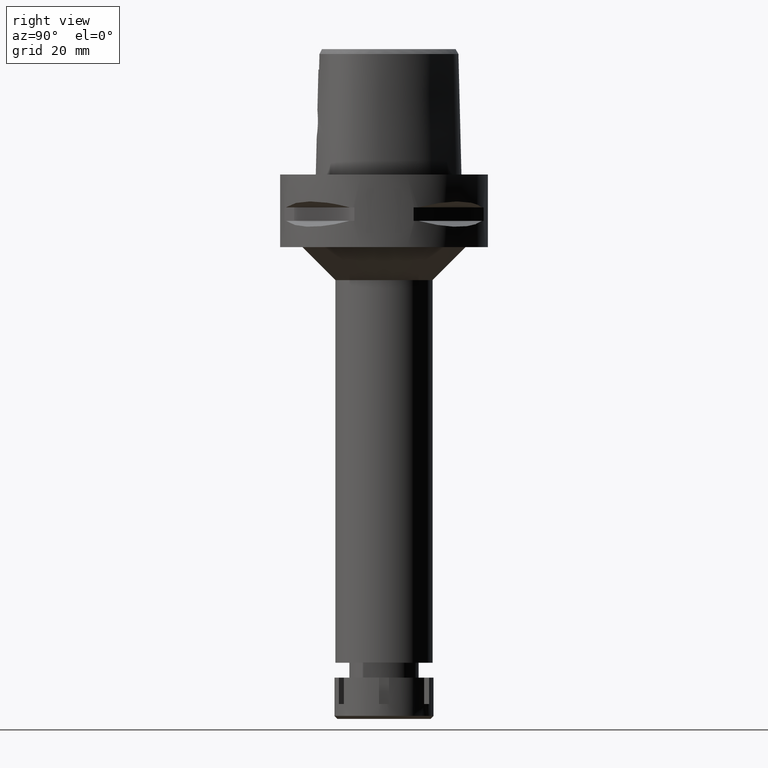
[diagram: clean part render]
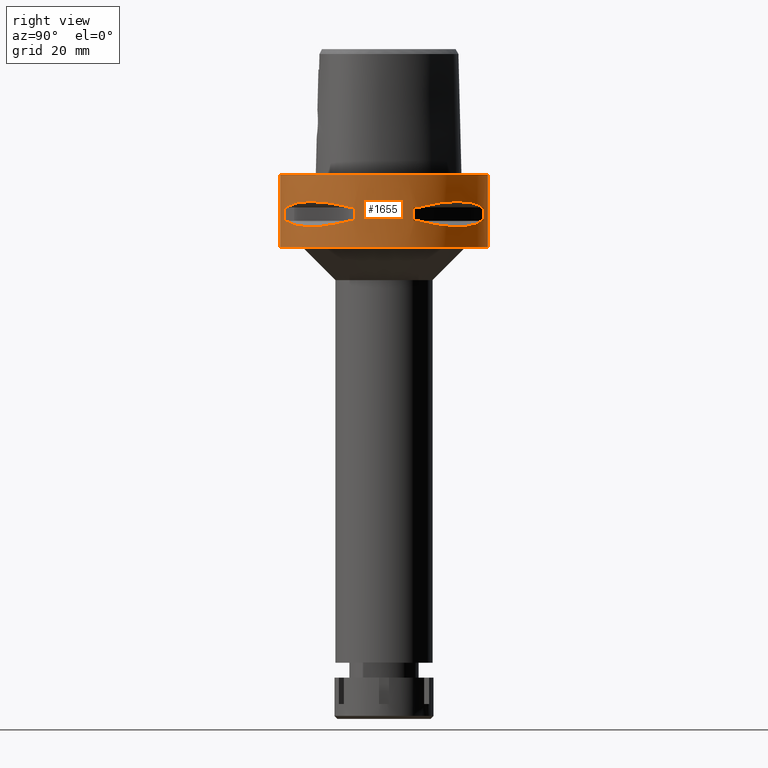
[diagram: same view with one face highlighted and labeled with its STEP entity id]
A machine part, right view. The second image highlights one B-rep face of the part: STEP entity #1655.
In plain terms, the highlighted cylindrical surface (partial cylindrical patch) has radius 31.5 mm, axis along (0, 0, -1).
Its self-contained STEP definition (entity closure, byte-faithful):
#49 = EDGE_CURVE ( 'NONE', #1065, #1573, #5286, .T. ) ;
#55 = CARTESIAN_POINT ( 'NONE',  ( 12.70097436192362572, 28.92472615202282782, -9.353533115182569802 ) ) ;
#80 = EDGE_CURVE ( 'NONE', #1065, #2919, #2968, .T. ) ;
#138 = DIRECTION ( 'NONE',  ( 0.0000000000000000000, -1.000000000000000000, 0.0000000000000000000 ) ) ;
#160 = DIRECTION ( 'NONE',  ( 0.9433937698468619626, -0.3316748332540863653, 0.0000000000000000000 ) ) ;
#173 = CARTESIAN_POINT ( 'NONE',  ( 0.0000000000000000000, 1.321393896280000074E-14, -22.00000000000000000 ) ) ;
#230 = VERTEX_POINT ( 'NONE', #1174 ) ;
#263 = EDGE_CURVE ( 'NONE', #2667, #750, #4801, .T. ) ;
#302 = CARTESIAN_POINT ( 'NONE',  ( 17.05047092244498685, 26.48642424310287780, -15.42670883407686411 ) ) ;
#349 = AXIS2_PLACEMENT_3D ( 'NONE', #173, #2723, #138 ) ;
#354 = CARTESIAN_POINT ( 'NONE',  ( 27.88210502977326755, -14.84430321591228186, -8.906184731931713117 ) ) ;
#360 = CARTESIAN_POINT ( 'NONE',  ( 14.89252659058207939, 27.86285265926221300, -15.10765629752054195 ) ) ;
#409 = CARTESIAN_POINT ( 'NONE',  ( 29.71690375017999841, -10.44775724750000023, -9.949999999998999201 ) ) ;
#433 = EDGE_CURVE ( 'NONE', #5354, #1455, #624, .T. ) ;
#435 = DIRECTION ( 'NONE',  ( 0.0000000000000000000, 0.0000000000000000000, 1.000000000000000000 ) ) ;
#438 = CIRCLE ( 'NONE', #4219, 31.50000000000000711 ) ;
#488 = CARTESIAN_POINT ( 'NONE',  ( 28.92474506847813132, 12.70092055722002300, -9.353547358250265731 ) ) ;
#507 = CARTESIAN_POINT ( 'NONE',  ( 8.981198972017999438, 30.19251670572000279, -14.05000000000000071 ) ) ;
#513 = ORIENTED_EDGE ( 'NONE', *, *, #4059, .F. ) ;
#518 = DIRECTION ( 'NONE',  ( 0.9433937698468619626, 0.3316748332540863653, 0.0000000000000000000 ) ) ;
#523 = ORIENTED_EDGE ( 'NONE', *, *, #2275, .T. ) ;
#571 = CARTESIAN_POINT ( 'NONE',  ( 8.981198972017999438, -30.19251670572000279, -9.950000000000001066 ) ) ;
#586 = FACE_OUTER_BOUND ( 'NONE', #858, .T. ) ;
#595 = CARTESIAN_POINT ( 'NONE',  ( 0.0000000000000000000, 31.50000000000000000, -22.00000000000000000 ) ) ;
#624 = CIRCLE ( 'NONE', #4487, 31.50000000000000711 ) ;
#638 = LINE ( 'NONE', #571, #891 ) ;
#710 = DIRECTION ( 'NONE',  ( 0.0000000000000000000, 0.0000000000000000000, 1.000000000000000000 ) ) ;
#726 = CARTESIAN_POINT ( 'NONE',  ( 29.71690375017999841, -10.44775724750000023, -14.05000000000000071 ) ) ;
#734 = CARTESIAN_POINT ( 'NONE',  ( 26.84474411198702981, 16.48208282229089505, -15.34094883778014129 ) ) ;
#750 = VERTEX_POINT ( 'NONE', #2622 ) ;
#789 = CARTESIAN_POINT ( 'NONE',  ( 17.76952662673489769, 26.01217882833579154, -15.52665221626253356 ) ) ;
#811 = AXIS2_PLACEMENT_3D ( 'NONE', #921, #1795, #518 ) ;
#812 = CARTESIAN_POINT ( 'NONE',  ( 26.42800887047654967, -17.14106442934675911, -15.43984550238513620 ) ) ;
#815 = CARTESIAN_POINT ( 'NONE',  ( 29.71690375017999841, -10.44775724750000023, -9.949999999998999201 ) ) ;
#858 = EDGE_LOOP ( 'NONE', ( #1161, #523, #2127, #4340 ) ) ;
#891 = VECTOR ( 'NONE', #3973, 1000.000000000000000 ) ;
#917 = ORIENTED_EDGE ( 'NONE', *, *, #4333, .T. ) ;
#921 = CARTESIAN_POINT ( 'NONE',  ( 0.0000000000000000000, 1.321393896280000074E-14, -14.05000000000000071 ) ) ;
#929 = CARTESIAN_POINT ( 'NONE',  ( 0.0000000000000000000, 1.321393896280000074E-14, -9.950000000000001066 ) ) ;
#942 = CARTESIAN_POINT ( 'NONE',  ( 27.88214534477233286, 14.84422749186507140, -8.906206096533264116 ) ) ;
#1018 = DIRECTION ( 'NONE',  ( 0.0000000000000000000, 0.0000000000000000000, 1.000000000000000000 ) ) ;
#1032 = DIRECTION ( 'NONE',  ( 0.0000000000000000000, 0.0000000000000000000, -1.000000000000000000 ) ) ;
#1039 = AXIS2_PLACEMENT_3D ( 'NONE', #4422, #1018, #5347 ) ;
#1065 = VERTEX_POINT ( 'NONE', #5259 ) ;
#1072 = VECTOR ( 'NONE', #2233, 1000.000000000000000 ) ;
#1079 = B_SPLINE_CURVE_WITH_KNOTS ( 'NONE', 3,
 ( #4349, #488, #942, #3476, #2191, #3892, #5191, #2216, #55, #3506 ),
 .UNSPECIFIED., .F., .F.,
 ( 4, 2, 2, 2, 4 ),
 ( 0.0000000000000000000, 0.2500000000000000000, 0.5000000000000000000, 0.7500000000000000000, 1.000000000000000000 ),
 .UNSPECIFIED. ) ;
#1156 = CARTESIAN_POINT ( 'NONE',  ( 10.44775724750000023, 29.71690375017999841, -14.05000000000000071 ) ) ;
#1161 = ORIENTED_EDGE ( 'NONE', *, *, #49, .T. ) ;
#1174 = CARTESIAN_POINT ( 'NONE',  ( 30.19251670572000279, -8.981198972019999616, -14.05000000000000071 ) ) ;
#1181 = VERTEX_POINT ( 'NONE', #5332 ) ;
#1199 = CARTESIAN_POINT ( 'NONE',  ( 0.0000000000000000000, 1.321393896280000074E-14, -9.950000000000001066 ) ) ;
#1206 = CARTESIAN_POINT ( 'NONE',  ( 18.86897208074864096, -25.32725744465734152, -15.69588095933306704 ) ) ;
#1230 = CARTESIAN_POINT ( 'NONE',  ( 24.23018836746479110, -20.18579225685548195, -15.78559396979238194 ) ) ;
#1237 = CARTESIAN_POINT ( 'NONE',  ( 29.71690375017999841, 10.44775724750000023, -14.05000000000000071 ) ) ;
#1251 = CARTESIAN_POINT ( 'NONE',  ( 0.0000000000000000000, 1.321393896280000074E-14, 2.131628207279999844E-14 ) ) ;
#1266 = CARTESIAN_POINT ( 'NONE',  ( 25.32725744468687168, 18.86897208071480136, -15.69588095933130845 ) ) ;
#1281 = VERTEX_POINT ( 'NONE', #3839 ) ;
#1289 = VERTEX_POINT ( 'NONE', #815 ) ;
#1303 = DIRECTION ( 'NONE',  ( 0.9584925938322735872, -0.2851174276831918153, 0.0000000000000000000 ) ) ;
#1305 = CARTESIAN_POINT ( 'NONE',  ( 0.0000000000000000000, -31.50000000000000000, 2.131628207279999844E-14 ) ) ;
#1309 = ORIENTED_EDGE ( 'NONE', *, *, #5020, .T. ) ;
#1318 = AXIS2_PLACEMENT_3D ( 'NONE', #1199, #3361, #4626 ) ;
#1361 = VERTEX_POINT ( 'NONE', #2108 ) ;
#1409 = VERTEX_POINT ( 'NONE', #5028 ) ;
#1411 = DIRECTION ( 'NONE',  ( 0.0000000000000000000, 0.0000000000000000000, 1.000000000000000000 ) ) ;
#1415 = VECTOR ( 'NONE', #435, 1000.000000000000000 ) ;
#1441 = DIRECTION ( 'NONE',  ( 0.0000000000000000000, -1.000000000000000000, 0.0000000000000000000 ) ) ;
#1455 = VERTEX_POINT ( 'NONE', #3156 ) ;
#1479 = DIRECTION ( 'NONE',  ( 0.0000000000000000000, 0.0000000000000000000, -1.000000000000000000 ) ) ;
#1503 = CIRCLE ( 'NONE', #1039, 31.50000000000001776 ) ;
#1522 = VERTEX_POINT ( 'NONE', #4924 ) ;
#1573 = VERTEX_POINT ( 'NONE', #1305 ) ;
#1599 = CARTESIAN_POINT ( 'NONE',  ( 20.65093790434436372, -23.89673728056386182, -15.83935804901581079 ) ) ;
#1605 = ORIENTED_EDGE ( 'NONE', *, *, #4351, .F. ) ;
#1631 = CARTESIAN_POINT ( 'NONE',  ( 26.29071741523927841, -17.35163608579630079, -15.46976201925489569 ) ) ;
#1655 = ADVANCED_FACE ( 'NONE', ( #586, #4086, #4831 ), #2707, .T. ) ;
#1660 = CARTESIAN_POINT ( 'NONE',  ( 25.43927894892507169, -18.59229662064666755, -15.62866126334561123 ) ) ;
#1666 = CARTESIAN_POINT ( 'NONE',  ( 27.11872488589154528, 16.03138450078616728, -15.26880420107737990 ) ) ;
#1690 = B_SPLINE_CURVE_WITH_KNOTS ( 'NONE', 3,
 ( #2086, #2977, #3426, #3865, #5055, #3448, #3790, #354, #2162, #409 ),
 .UNSPECIFIED., .F., .F.,
 ( 4, 2, 2, 2, 4 ),
 ( 0.0000000000000000000, 0.2500000000000001110, 0.5000000000000000000, 0.7500000000000000000, 1.000000000000000000 ),
 .UNSPECIFIED. ) ;
#1795 = DIRECTION ( 'NONE',  ( 0.0000000000000000000, 0.0000000000000000000, -1.000000000000000000 ) ) ;
#1807 = VERTEX_POINT ( 'NONE', #2437 ) ;
#1995 = CARTESIAN_POINT ( 'NONE',  ( 27.86285265927817889, -14.89252659053665795, -15.10765629750851602 ) ) ;
#1996 = ORIENTED_EDGE ( 'NONE', *, *, #3011, .T. ) ;
#2003 = CARTESIAN_POINT ( 'NONE',  ( 17.14106442935163699, 26.42800887047211944, -15.43984550238531916 ) ) ;
#2022 = CARTESIAN_POINT ( 'NONE',  ( 28.91382665370159089, -12.73197616784618269, -14.65467361752943098 ) ) ;
#2059 = CARTESIAN_POINT ( 'NONE',  ( 23.89673728051777957, 20.65093790438612587, -15.83935804901405042 ) ) ;
#2079 = ORIENTED_EDGE ( 'NONE', *, *, #2648, .T. ) ;
#2086 = CARTESIAN_POINT ( 'NONE',  ( 10.44775724750000023, -29.71690375017999841, -9.949999999998999201 ) ) ;
#2088 = CARTESIAN_POINT ( 'NONE',  ( 29.31542262584548553, 11.58970337494890224, -14.35229357167063213 ) ) ;
#2106 = CARTESIAN_POINT ( 'NONE',  ( 16.86571563436751475, -26.60451452154716989, -15.39949295786035854 ) ) ;
#2108 = CARTESIAN_POINT ( 'NONE',  ( 10.44775724750000023, -29.71690375017999841, -14.05000000000000071 ) ) ;
#2112 = CARTESIAN_POINT ( 'NONE',  ( 26.58330558444425762, 16.89910283486581832, -15.40446471307235754 ) ) ;
#2127 = ORIENTED_EDGE ( 'NONE', *, *, #2265, .T. ) ;
#2162 = CARTESIAN_POINT ( 'NONE',  ( 28.92472615202282427, -12.70097436192359375, -9.353533115182569802 ) ) ;
#2191 = CARTESIAN_POINT ( 'NONE',  ( 23.90617837140502999, 20.64154884334748985, -8.160627831333236770 ) ) ;
#2214 = ORIENTED_EDGE ( 'NONE', *, *, #263, .F. ) ;
#2216 = CARTESIAN_POINT ( 'NONE',  ( 14.84430321591224278, 27.88210502977331373, -8.906184731931713117 ) ) ;
#2233 = DIRECTION ( 'NONE',  ( 0.0000000000000000000, 0.0000000000000000000, 1.000000000000000000 ) ) ;
#2265 = EDGE_CURVE ( 'NONE', #4154, #2919, #3931, .T. ) ;
#2275 = EDGE_CURVE ( 'NONE', #1573, #4154, #4878, .T. ) ;
#2286 = CARTESIAN_POINT ( 'NONE',  ( 0.0000000000000000000, 1.321393896280000074E-14, 7.900000000000000355 ) ) ;
#2311 = EDGE_CURVE ( 'NONE', #1522, #750, #3238, .T. ) ;
#2349 = B_SPLINE_CURVE_WITH_KNOTS ( 'NONE', 3,
 ( #5052, #4994, #5498, #2500, #5442, #4212, #4657, #3343, #2106, #2474, #1206, #1599, #4577, #1230, #1660, #3314, #1631, #812, #3286, #5077, #2901, #1995, #2022, #726 ),
 .UNSPECIFIED., .F., .F.,
 ( 4, 1, 1, 1, 1, 1, 2, 2, 2, 1, 1, 1, 1, 1, 2, 2, 4 ),
 ( 0.0000000000000000000, 0.1250000000000063005, 0.1875000000000094369, 0.2187500000000109357, 0.2343750000000116851, 0.2421875000000119627, 0.2460937500000119627, 0.2500000000000119349, 0.5000000000000025535, 0.6249999999999978906, 0.6874999999999955591, 0.7187499999999945599, 0.7343749999999941158, 0.7421874999999936717, 0.7460937499999935607, 0.7499999999999933387, 1.000000000000000000 ),
 .UNSPECIFIED. ) ;
#2437 = CARTESIAN_POINT ( 'NONE',  ( 8.981198972017999438, -30.19251670572000279, -14.05000000000000071 ) ) ;
#2474 = CARTESIAN_POINT ( 'NONE',  ( 16.89910283486529252, -26.58330558444471947, -15.40446471307232912 ) ) ;
#2491 = AXIS2_PLACEMENT_3D ( 'NONE', #4455, #1479, #3137 ) ;
#2500 = CARTESIAN_POINT ( 'NONE',  ( 15.11986997312254033, -27.64634172017490954, -15.11207862404184787 ) ) ;
#2508 = CARTESIAN_POINT ( 'NONE',  ( 16.98999780422198569, 26.52527364208497573, -15.41788098766329540 ) ) ;
#2526 = DIRECTION ( 'NONE',  ( 0.0000000000000000000, 0.0000000000000000000, -1.000000000000000000 ) ) ;
#2604 = ORIENTED_EDGE ( 'NONE', *, *, #4638, .T. ) ;
#2622 = CARTESIAN_POINT ( 'NONE',  ( 30.19251670572000279, 8.981198972017999438, -14.05000000000000071 ) ) ;
#2648 = EDGE_CURVE ( 'NONE', #1409, #1289, #1690, .T. ) ;
#2659 = CARTESIAN_POINT ( 'NONE',  ( 0.0000000000000000000, 1.321393896280000074E-14, -14.05000000000000071 ) ) ;
#2667 = VERTEX_POINT ( 'NONE', #5109 ) ;
#2679 = CARTESIAN_POINT ( 'NONE',  ( 30.19251670572000279, 8.981198972017999438, -9.950000000000001066 ) ) ;
#2707 = CYLINDRICAL_SURFACE ( 'NONE', #5111, 31.50000000000000000 ) ;
#2723 = DIRECTION ( 'NONE',  ( 0.0000000000000000000, 0.0000000000000000000, 1.000000000000000000 ) ) ;
#2737 = DIRECTION ( 'NONE',  ( 0.3316748332540863653, -0.9433937698468619626, 0.0000000000000000000 ) ) ;
#2742 = EDGE_CURVE ( 'NONE', #230, #1181, #4661, .T. ) ;
#2755 = VERTEX_POINT ( 'NONE', #4319 ) ;
#2787 = CARTESIAN_POINT ( 'NONE',  ( 10.44775724750000023, 29.71690375017999841, -9.949999999998999201 ) ) ;
#2792 = VECTOR ( 'NONE', #2526, 1000.000000000000000 ) ;
#2805 = VERTEX_POINT ( 'NONE', #3499 ) ;
#2846 = ORIENTED_EDGE ( 'NONE', *, *, #3966, .F. ) ;
#2899 = ORIENTED_EDGE ( 'NONE', *, *, #2311, .T. ) ;
#2901 = CARTESIAN_POINT ( 'NONE',  ( 26.54368690921627305, -16.96123479564985459, -15.41365572341332602 ) ) ;
#2919 = VERTEX_POINT ( 'NONE', #595 ) ;
#2968 = LINE ( 'NONE', #3362, #2792 ) ;
#2977 = CARTESIAN_POINT ( 'NONE',  ( 12.70092055722010116, -28.92474506847808868, -9.353547358250267507 ) ) ;
#3011 = EDGE_CURVE ( 'NONE', #3198, #5354, #1079, .T. ) ;
#3137 = DIRECTION ( 'NONE',  ( 0.2851174276831918153, 0.9584925938322735872, 0.0000000000000000000 ) ) ;
#3156 = CARTESIAN_POINT ( 'NONE',  ( 8.981198972017999438, 30.19251670572000279, -9.950000000000001066 ) ) ;
#3161 = DIRECTION ( 'NONE',  ( 0.0000000000000000000, 0.0000000000000000000, -1.000000000000000000 ) ) ;
#3198 = VERTEX_POINT ( 'NONE', #5546 ) ;
#3217 = CIRCLE ( 'NONE', #5454, 31.50000000000000711 ) ;
#3238 = CIRCLE ( 'NONE', #811, 31.50000000000000711 ) ;
#3257 = EDGE_LOOP ( 'NONE', ( #3980, #1605, #1309, #5238, #2899, #2214, #2604, #1996 ) ) ;
#3286 = CARTESIAN_POINT ( 'NONE',  ( 26.48642424310542509, -17.05047092244215889, -15.42670883407675042 ) ) ;
#3293 = CARTESIAN_POINT ( 'NONE',  ( 20.18579225689579104, 24.23018836742823723, -15.78559396979392560 ) ) ;
#3314 = CARTESIAN_POINT ( 'NONE',  ( 26.01217882835178585, -17.76952662671725847, -15.52665221626185676 ) ) ;
#3343 = CARTESIAN_POINT ( 'NONE',  ( 16.80193241490779599, -26.64486562695696037, -15.38992683735752642 ) ) ;
#3348 = CARTESIAN_POINT ( 'NONE',  ( 26.70521063584491017, 16.70616724745910275, -15.37546661817714444 ) ) ;
#3361 = DIRECTION ( 'NONE',  ( 0.0000000000000000000, 0.0000000000000000000, 1.000000000000000000 ) ) ;
#3362 = CARTESIAN_POINT ( 'NONE',  ( 0.0000000000000000000, 31.50000000000000000, 1.125025998286999896E-14 ) ) ;
#3374 = CARTESIAN_POINT ( 'NONE',  ( 16.96123479564913694, 26.54368690921650398, -15.41365572341313239 ) ) ;
#3426 = CARTESIAN_POINT ( 'NONE',  ( 14.84422749186506607, -27.88214534477231155, -8.906206096533262340 ) ) ;
#3448 = CARTESIAN_POINT ( 'NONE',  ( 23.90617837140503710, -20.64154884334745788, -8.160613588441465893 ) ) ;
#3476 = CARTESIAN_POINT ( 'NONE',  ( 25.37277178176736570, 18.81455742151809574, -8.309746333162708609 ) ) ;
#3499 = CARTESIAN_POINT ( 'NONE',  ( 10.44775724750000023, 29.71690375017999841, -14.05000000000000071 ) ) ;
#3506 = CARTESIAN_POINT ( 'NONE',  ( 10.44775724750000023, 29.71690375017999841, -9.949999999998999201 ) ) ;
#3575 = EDGE_LOOP ( 'NONE', ( #5411, #3888, #917, #513, #4410, #2846, #5428, #2079 ) ) ;
#3659 = DIRECTION ( 'NONE',  ( 0.3316748332540863653, 0.9433937698468619626, 0.0000000000000000000 ) ) ;
#3762 = CARTESIAN_POINT ( 'NONE',  ( 30.19251670572000279, -8.981198972017999438, -14.05000000000000071 ) ) ;
#3766 = CARTESIAN_POINT ( 'NONE',  ( 28.62019653468597724, 13.25636937904471147, -14.74888225541528186 ) ) ;
#3790 = CARTESIAN_POINT ( 'NONE',  ( 25.37272068390325330, -18.81462633043449983, -8.309724968561161162 ) ) ;
#3839 = CARTESIAN_POINT ( 'NONE',  ( 8.981198972019999616, 30.19251670572000279, -14.05000000000000071 ) ) ;
#3852 = EDGE_CURVE ( 'NONE', #1522, #2805, #4159, .T. ) ;
#3865 = CARTESIAN_POINT ( 'NONE',  ( 18.81455742151802468, -25.37277178176738346, -8.309746333162708609 ) ) ;
#3888 = ORIENTED_EDGE ( 'NONE', *, *, #2742, .F. ) ;
#3892 = CARTESIAN_POINT ( 'NONE',  ( 20.64154884334739037, 23.90617837140510105, -8.160613588441464117 ) ) ;
#3928 = CIRCLE ( 'NONE', #4224, 31.50000000000001776 ) ;
#3931 = CIRCLE ( 'NONE', #349, 31.50000000000000000 ) ;
#3966 = EDGE_CURVE ( 'NONE', #4247, #1807, #638, .T. ) ;
#3973 = DIRECTION ( 'NONE',  ( 0.0000000000000000000, 0.0000000000000000000, -1.000000000000000000 ) ) ;
#3980 = ORIENTED_EDGE ( 'NONE', *, *, #433, .T. ) ;
#3988 = DIRECTION ( 'NONE',  ( 0.0000000000000000000, 0.0000000000000000000, -1.000000000000000000 ) ) ;
#4026 = CARTESIAN_POINT ( 'NONE',  ( 0.0000000000000000000, 1.321393896280000074E-14, -9.950000000000001066 ) ) ;
#4059 = EDGE_CURVE ( 'NONE', #1361, #2755, #2349, .T. ) ;
#4086 = FACE_BOUND ( 'NONE', #3575, .T. ) ;
#4154 = VERTEX_POINT ( 'NONE', #4547 ) ;
#4159 = B_SPLINE_CURVE_WITH_KNOTS ( 'NONE', 3,
 ( #1237, #2088, #3766, #5113, #1666, #734, #3348, #5505, #5033, #2112, #1266, #2059, #5059, #3293, #5001, #789, #4637, #2003, #302, #2508, #3374, #360, #5085, #1156 ),
 .UNSPECIFIED., .F., .F.,
 ( 4, 1, 1, 1, 1, 1, 2, 2, 2, 1, 1, 1, 1, 1, 2, 2, 4 ),
 ( 0.0000000000000000000, 0.1250000000000023870, 0.1875000000000036915, 0.2187500000000045797, 0.2343750000000049960, 0.2421875000000053013, 0.2460937500000055789, 0.2500000000000058842, 0.5000000000000076605, 0.6250000000000083267, 0.6875000000000086597, 0.7187500000000088818, 0.7343750000000086597, 0.7421875000000086597, 0.7460937500000084377, 0.7500000000000083267, 1.000000000000000000 ),
 .UNSPECIFIED. ) ;
#4212 = CARTESIAN_POINT ( 'NONE',  ( 16.48208282229687427, -26.84474411198493371, -15.34094883778172402 ) ) ;
#4219 = AXIS2_PLACEMENT_3D ( 'NONE', #4026, #1411, #160 ) ;
#4224 = AXIS2_PLACEMENT_3D ( 'NONE', #2659, #4368, #1303 ) ;
#4247 = VERTEX_POINT ( 'NONE', #5547 ) ;
#4262 = DIRECTION ( 'NONE',  ( 0.0000000000000000000, 0.0000000000000000000, -1.000000000000000000 ) ) ;
#4319 = CARTESIAN_POINT ( 'NONE',  ( 29.71690375017999841, -10.44775724750000023, -14.05000000000000071 ) ) ;
#4333 = EDGE_CURVE ( 'NONE', #230, #2755, #3928, .T. ) ;
#4337 = DIRECTION ( 'NONE',  ( 0.0000000000000000000, 0.0000000000000000000, -1.000000000000000000 ) ) ;
#4340 = ORIENTED_EDGE ( 'NONE', *, *, #80, .F. ) ;
#4349 = CARTESIAN_POINT ( 'NONE',  ( 29.71690375017999841, 10.44775724750000023, -9.949999999998999201 ) ) ;
#4351 = EDGE_CURVE ( 'NONE', #1281, #1455, #5155, .T. ) ;
#4368 = DIRECTION ( 'NONE',  ( 0.0000000000000000000, 0.0000000000000000000, -1.000000000000000000 ) ) ;
#4390 = EDGE_CURVE ( 'NONE', #1289, #1181, #438, .T. ) ;
#4410 = ORIENTED_EDGE ( 'NONE', *, *, #4513, .T. ) ;
#4422 = CARTESIAN_POINT ( 'NONE',  ( 0.0000000000000000000, 1.321393896280000074E-14, -9.950000000000001066 ) ) ;
#4455 = CARTESIAN_POINT ( 'NONE',  ( 0.0000000000000000000, 1.321393896280000074E-14, -14.05000000000000071 ) ) ;
#4487 = AXIS2_PLACEMENT_3D ( 'NONE', #929, #710, #3659 ) ;
#4498 = EDGE_CURVE ( 'NONE', #4247, #1409, #1503, .T. ) ;
#4513 = EDGE_CURVE ( 'NONE', #1361, #1807, #3217, .T. ) ;
#4547 = CARTESIAN_POINT ( 'NONE',  ( 0.0000000000000000000, -31.50000000000000000, -22.00000000000000000 ) ) ;
#4577 = CARTESIAN_POINT ( 'NONE',  ( 23.08532645888704238, -21.46242677077732353, -15.83938991065408963 ) ) ;
#4626 = DIRECTION ( 'NONE',  ( 0.9584925938322735872, 0.2851174276831918153, 0.0000000000000000000 ) ) ;
#4637 = CARTESIAN_POINT ( 'NONE',  ( 17.35163608580574035, 26.29071741523071282, -15.46976201925525274 ) ) ;
#4638 = EDGE_CURVE ( 'NONE', #2667, #3198, #4913, .T. ) ;
#4657 = CARTESIAN_POINT ( 'NONE',  ( 16.70616724746217940, -26.70521063584381949, -15.37546661817795624 ) ) ;
#4661 = LINE ( 'NONE', #3762, #1415 ) ;
#4801 = LINE ( 'NONE', #2679, #5381 ) ;
#4831 = FACE_BOUND ( 'NONE', #3257, .T. ) ;
#4878 = LINE ( 'NONE', #5217, #4932 ) ;
#4893 = CIRCLE ( 'NONE', #2491, 31.50000000000001776 ) ;
#4913 = CIRCLE ( 'NONE', #1318, 31.50000000000001776 ) ;
#4924 = CARTESIAN_POINT ( 'NONE',  ( 29.71690375017999841, 10.44775724750000023, -14.05000000000000071 ) ) ;
#4930 = CARTESIAN_POINT ( 'NONE',  ( 0.0000000000000000000, 1.321393896280000074E-14, -14.05000000000000071 ) ) ;
#4932 = VECTOR ( 'NONE', #1032, 1000.000000000000000 ) ;
#4994 = CARTESIAN_POINT ( 'NONE',  ( 11.58970337496347902, -29.31542262584038028, -14.35229357167449216 ) ) ;
#5001 = CARTESIAN_POINT ( 'NONE',  ( 18.59229662067690114, 25.43927894889767316, -15.62866126334676942 ) ) ;
#5020 = EDGE_CURVE ( 'NONE', #1281, #2805, #4893, .T. ) ;
#5028 = CARTESIAN_POINT ( 'NONE',  ( 10.44775724750000023, -29.71690375017999841, -9.949999999998999201 ) ) ;
#5030 = AXIS2_PLACEMENT_3D ( 'NONE', #1251, #4262, #5464 ) ;
#5033 = CARTESIAN_POINT ( 'NONE',  ( 26.60451452154748253, 16.86571563436660526, -15.39949295786011874 ) ) ;
#5052 = CARTESIAN_POINT ( 'NONE',  ( 10.44775724750000023, -29.71690375017999841, -14.05000000000000071 ) ) ;
#5055 = CARTESIAN_POINT ( 'NONE',  ( 20.64154884334739393, -23.90617837140507973, -8.160627831333234994 ) ) ;
#5059 = CARTESIAN_POINT ( 'NONE',  ( 21.46242677080035932, 23.08532645886616308, -15.83938991065496715 ) ) ;
#5077 = CARTESIAN_POINT ( 'NONE',  ( 26.52527364208627958, -16.98999780422056816, -15.41788098766324744 ) ) ;
#5085 = CARTESIAN_POINT ( 'NONE',  ( 12.73197616789159525, 28.91382665368562144, -14.65467361754145514 ) ) ;
#5109 = CARTESIAN_POINT ( 'NONE',  ( 30.19251670572000279, 8.981198972019999616, -9.950000000000001066 ) ) ;
#5111 = AXIS2_PLACEMENT_3D ( 'NONE', #2286, #3988, #1441 ) ;
#5113 = CARTESIAN_POINT ( 'NONE',  ( 27.64634172018161706, 15.11986997310341962, -15.11207862403678170 ) ) ;
#5155 = LINE ( 'NONE', #507, #1072 ) ;
#5191 = CARTESIAN_POINT ( 'NONE',  ( 18.81462633043445010, 25.37272068390331725, -8.309724968561161162 ) ) ;
#5217 = CARTESIAN_POINT ( 'NONE',  ( 0.0000000000000000000, -31.50000000000000000, 1.125025998286999896E-14 ) ) ;
#5238 = ORIENTED_EDGE ( 'NONE', *, *, #3852, .F. ) ;
#5259 = CARTESIAN_POINT ( 'NONE',  ( 0.0000000000000000000, 31.50000000000000000, 2.131628207279999844E-14 ) ) ;
#5286 = CIRCLE ( 'NONE', #5030, 31.50000000000000000 ) ;
#5332 = CARTESIAN_POINT ( 'NONE',  ( 30.19251670572000279, -8.981198972017999438, -9.950000000000001066 ) ) ;
#5347 = DIRECTION ( 'NONE',  ( 0.2851174276831918153, -0.9584925938322735872, 0.0000000000000000000 ) ) ;
#5354 = VERTEX_POINT ( 'NONE', #2787 ) ;
#5381 = VECTOR ( 'NONE', #4337, 1000.000000000000000 ) ;
#5411 = ORIENTED_EDGE ( 'NONE', *, *, #4390, .T. ) ;
#5428 = ORIENTED_EDGE ( 'NONE', *, *, #4498, .T. ) ;
#5442 = CARTESIAN_POINT ( 'NONE',  ( 16.03138450079733346, -27.11872488588761954, -15.26880420108033398 ) ) ;
#5454 = AXIS2_PLACEMENT_3D ( 'NONE', #4930, #3161, #2737 ) ;
#5464 = DIRECTION ( 'NONE',  ( 0.0000000000000000000, 1.000000000000000000, 0.0000000000000000000 ) ) ;
#5498 = CARTESIAN_POINT ( 'NONE',  ( 13.25636937907020929, -28.62019653467701730, -14.74888225542203379 ) ) ;
#5505 = CARTESIAN_POINT ( 'NONE',  ( 26.64486562695759275, 16.80193241490600542, -15.38992683735705391 ) ) ;
#5546 = CARTESIAN_POINT ( 'NONE',  ( 29.71690375017999841, 10.44775724750000023, -9.949999999998999201 ) ) ;
#5547 = CARTESIAN_POINT ( 'NONE',  ( 8.981198972019999616, -30.19251670572000279, -9.950000000000001066 ) ) ;